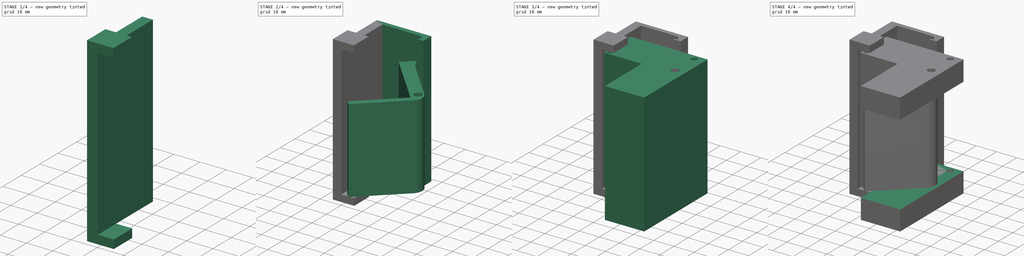
[diagram: build sequence overview — one tinted view per stage of 4, left to right]
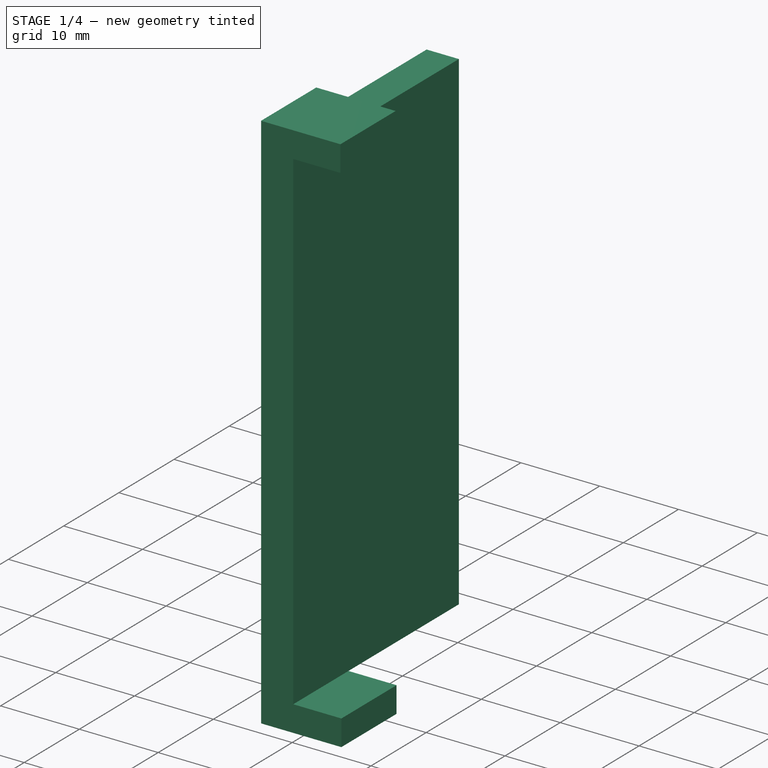
[diagram: stage 1 of 4 — iso view after this stage's code; geometry added in this stage tinted green]
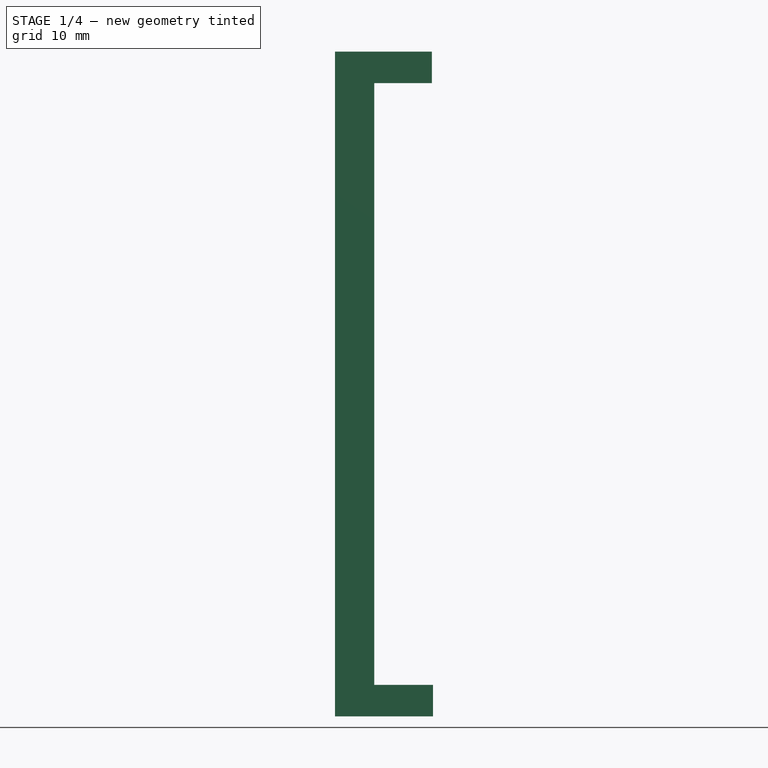
[diagram: stage 1 of 4 — front view after this stage's code; geometry added in this stage tinted green]
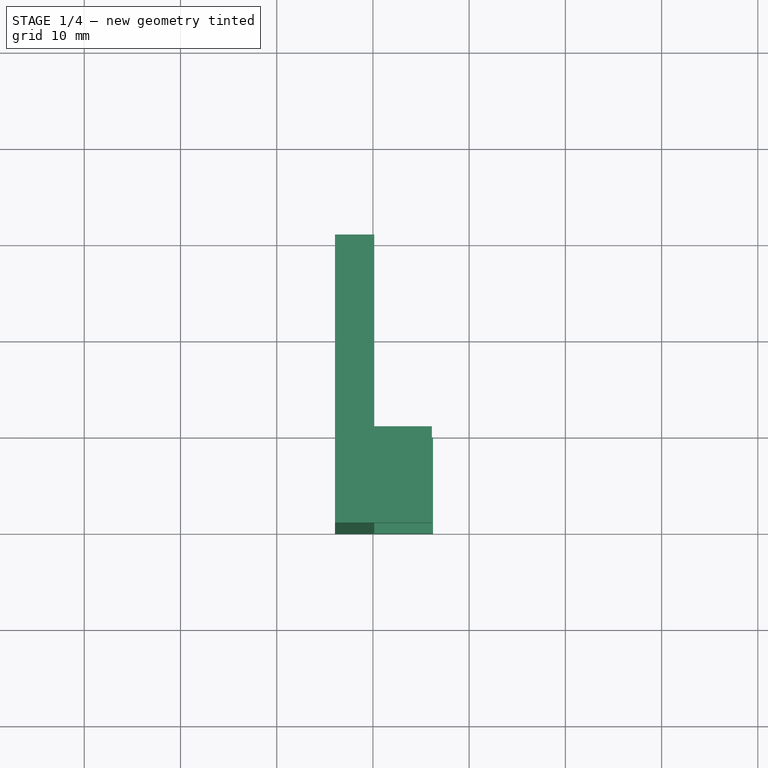
[diagram: stage 1 of 4 — top view after this stage's code; geometry added in this stage tinted green]
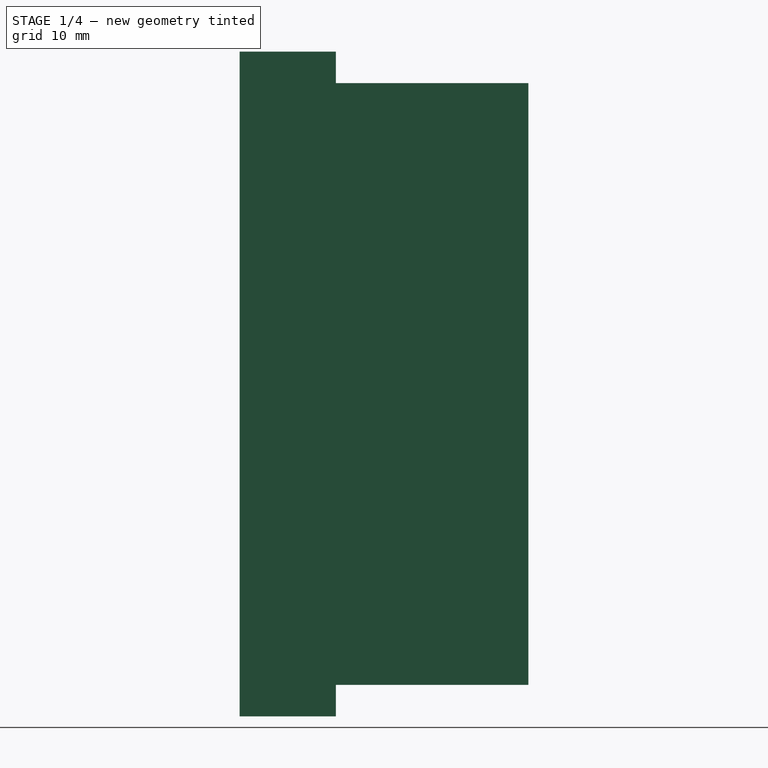
[diagram: stage 1 of 4 — right view after this stage's code; geometry added in this stage tinted green]
FCSTD DOCUMENT  (FreeCAD 1.0R39109 (Git))
Label: porte_banniere
License: All rights reserved
LicenseURL: https://en.wikipedia.org/wiki/All_rights_reserved
objects: Sketcher::SketchObject×6, PartDesign::Pad×4, PartDesign::Body×3, PartDesign::Fillet×3, PartDesign::Pocket×2, PartDesign::ShapeBinder×2, PartDesign::Chamfer×1
note: 47 computed .brp shape members not serialized (recipe doc carries the construction recipe); baked Part::Feature solids carry a one-line shape summary decoded from their .brp

FEATURE [PartDesign::Body] Body001  label="Corps001"
  AllowCompound = false
  Group = -> [CopyChamfer,Sketch002,Pad001,Fillet,Fillet001,Fillet002]
  Origin = -> Origin001
  Tip = -> Fillet002
FEATURE [PartDesign::ShapeBinder] CopyChamfer001
  TraceSupport = false
FEATURE [Sketcher::SketchObject] Sketch003
  ArcFitTolerance = 1e-06
  AttachmentSupport = -> [CopyChamfer001]
  FullyConstrained = false
  MakeInternals = false
  MapMode = 5
  Placement = pos=(0,0,0) rot=(1,0,0;1.5708rad)
  sketch-geometry (8):
    g0: LineSegment StartX=-19.8611 StartY=61.1366 StartZ=0 EndX=-13.8752 EndY=61.1366 EndZ=0
    g1: LineSegment StartX=-13.8752 StartY=61.1366 StartZ=0 EndX=-13.8752 EndY=64.4211 EndZ=0
    g2: LineSegment StartX=-13.8752 StartY=64.4211 StartZ=0 EndX=-23.9444 EndY=64.4211 EndZ=0
    g3: LineSegment StartX=-23.9444 StartY=64.4211 StartZ=0 EndX=-23.9444 EndY=-4.67728 EndZ=0
    g4: LineSegment StartX=-23.9444 StartY=-4.67728 StartZ=0 EndX=-13.757 EndY=-4.67728 EndZ=0
    g5: LineSegment StartX=-13.757 StartY=-4.67728 StartZ=0 EndX=-13.757 EndY=-1.39272 EndZ=0
    g6: LineSegment StartX=-13.757 StartY=-1.39272 StartZ=0 EndX=-19.8611 EndY=-1.39272 EndZ=0
    g7: LineSegment StartX=-19.8611 StartY=-1.39272 StartZ=0 EndX=-19.8611 EndY=61.1366 EndZ=0
  constraints (17):
    c: Horizontal(g0)
    c: Coincident(g0,g1)
    c: Coincident(g1,g2)
    c: Horizontal(g2)
    c: Coincident(g2,g3)
    c: Vertical(g3)
    c: Coincident(g3,g4)
    c: Horizontal(g4)
    c: Coincident(g4,g5)
    c: Vertical(g5)
    c: Coincident(g5,g6)
    c: Horizontal(g6)
    c: Coincident(g6,g7)
    c: Coincident(g7,g0)
    c: Vertical(g7)
    c: Vertical(g1)
    c: Equal(g5,g1)
FEATURE [PartDesign::Pad] Pad002
  Direction = (0,-1,2e-16)
  Length = 30
  Length2 = 10
  Profile = -> Sketch003
  ReferenceAxis = -> Sketch003 [N_Axis]
  Refine = true
  Reversed = true
  Suppressed = false
  Type = 0
FEATURE [Sketcher::SketchObject] Sketch004
  ArcFitTolerance = 1e-06
  AttachmentSupport = -> [Pad002]
  ExternalGeometry = -> [Pad002]
  FullyConstrained = true
  MakeInternals = false
  MapMode = 5
  Placement = pos=(0,30,-6.7e-15) rot=(0,0.707107,0.707107;3.14159rad)
  sketch-geometry (8):
    g0: LineSegment StartX=23.9444 StartY=64.4211 StartZ=0 EndX=13.8752 EndY=64.4211 EndZ=0
    g1: LineSegment StartX=13.8752 StartY=64.4211 StartZ=0 EndX=13.8752 EndY=61.1366 EndZ=0
    g2: LineSegment StartX=13.8752 StartY=61.1366 StartZ=0 EndX=23.9444 EndY=61.1366 EndZ=0
    g3: LineSegment StartX=23.9444 StartY=61.1366 StartZ=0 EndX=23.9444 EndY=64.4211 EndZ=0
    g4: LineSegment StartX=23.9444 StartY=-4.67728 StartZ=0 EndX=23.9444 EndY=-1.39272 EndZ=0
    g5: LineSegment StartX=23.9444 StartY=-1.39272 StartZ=0 EndX=13.757 EndY=-1.39272 EndZ=0
    g6: LineSegment StartX=13.757 StartY=-1.39272 StartZ=0 EndX=13.757 EndY=-4.67728 EndZ=0
    g7: LineSegment StartX=13.757 StartY=-4.67728 StartZ=0 EndX=23.9444 EndY=-4.67728 EndZ=0
  constraints (20):
    c: Coincident(g0,g1)
    c: Coincident(g1,g2)
    c: Coincident(g2,g3)
    c: Coincident(g3,g0)
    c: Horizontal(g0)
    c: Horizontal(g2)
    c: Vertical(g1)
    c: Vertical(g3)
    c: Coincident(g0,g-3)
    c: Coincident(g1,g-4)
    c: Coincident(g4,g5)
    c: Coincident(g5,g6)
    c: Coincident(g6,g7)
    c: Coincident(g7,g4)
    c: Vertical(g4)
    c: Vertical(g6)
    c: Horizontal(g5)
    c: Horizontal(g7)
    c: Coincident(g4,g-6)
    c: Coincident(g5,g-5)
FEATURE [PartDesign::Pocket] Pocket001
  BaseFeature = -> Pad002
  Direction = (0,-1,2e-16)
  Length = 20
  Length2 = 5
  Profile = -> Sketch004
  ReferenceAxis = -> Sketch004 [N_Axis]
  Refine = true
  Suppressed = false
  Type = 0
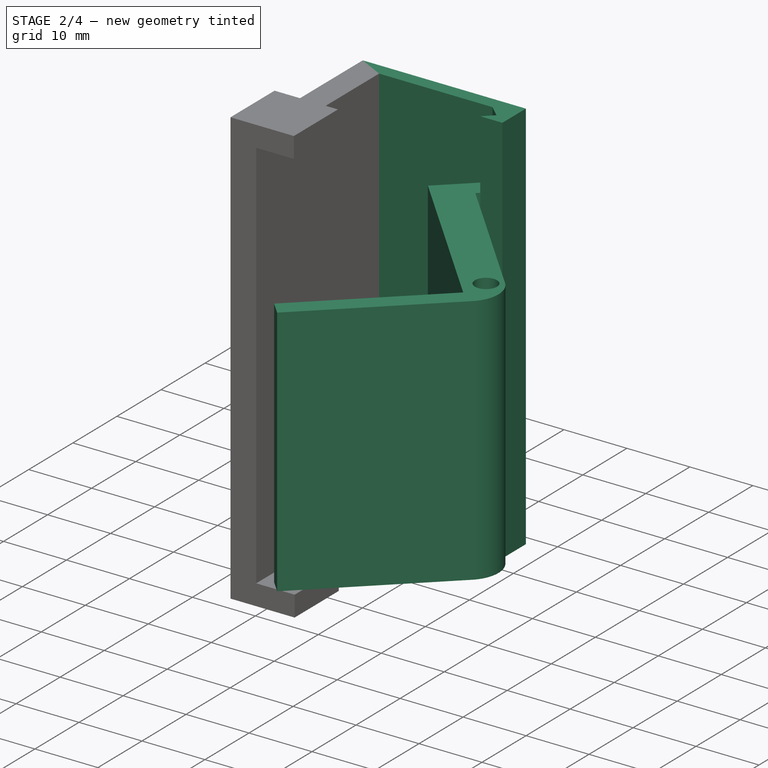
[diagram: stage 2 of 4 — iso view after this stage's code; geometry added in this stage tinted green]
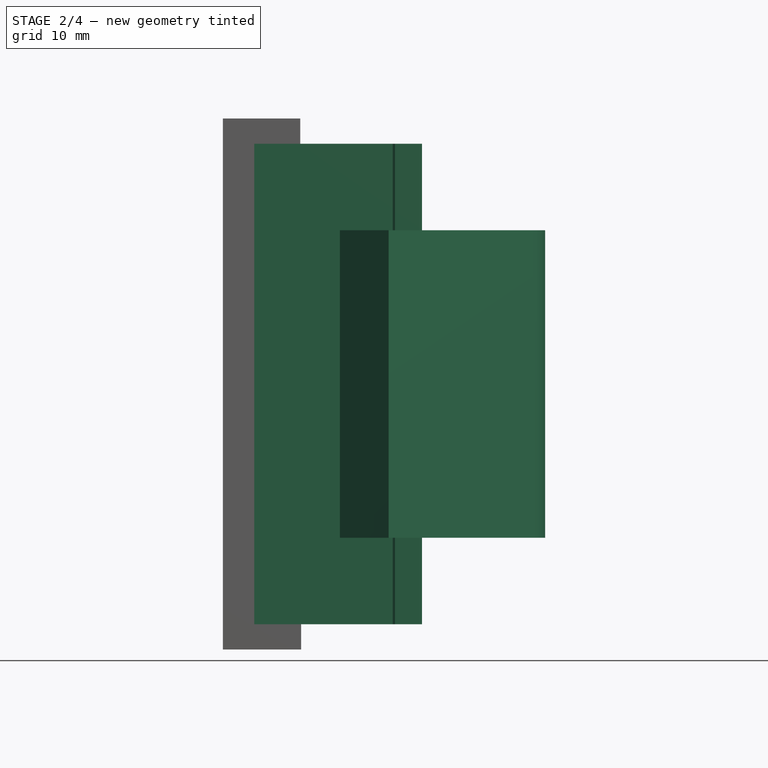
[diagram: stage 2 of 4 — front view after this stage's code; geometry added in this stage tinted green]
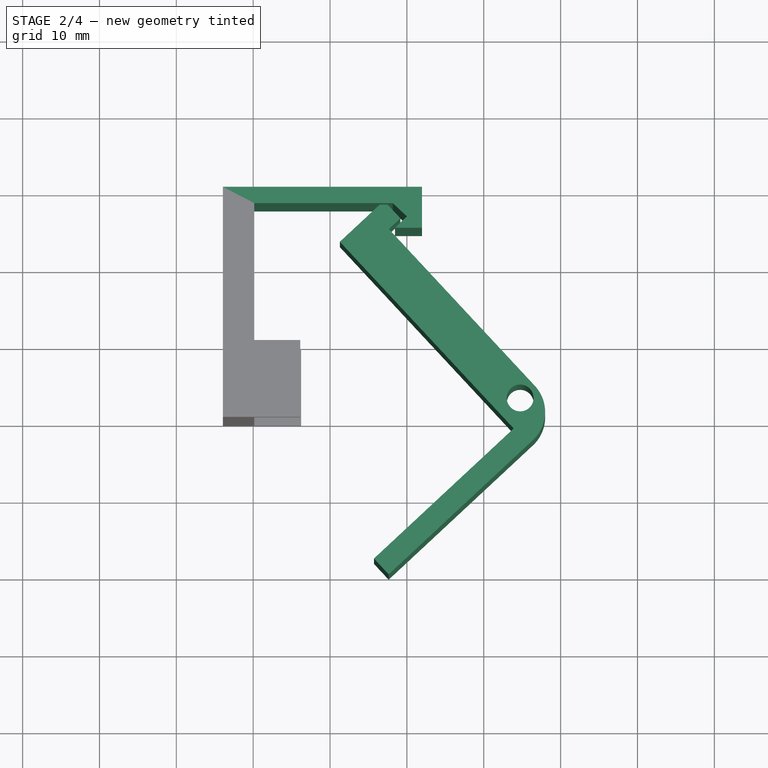
[diagram: stage 2 of 4 — top view after this stage's code; geometry added in this stage tinted green]
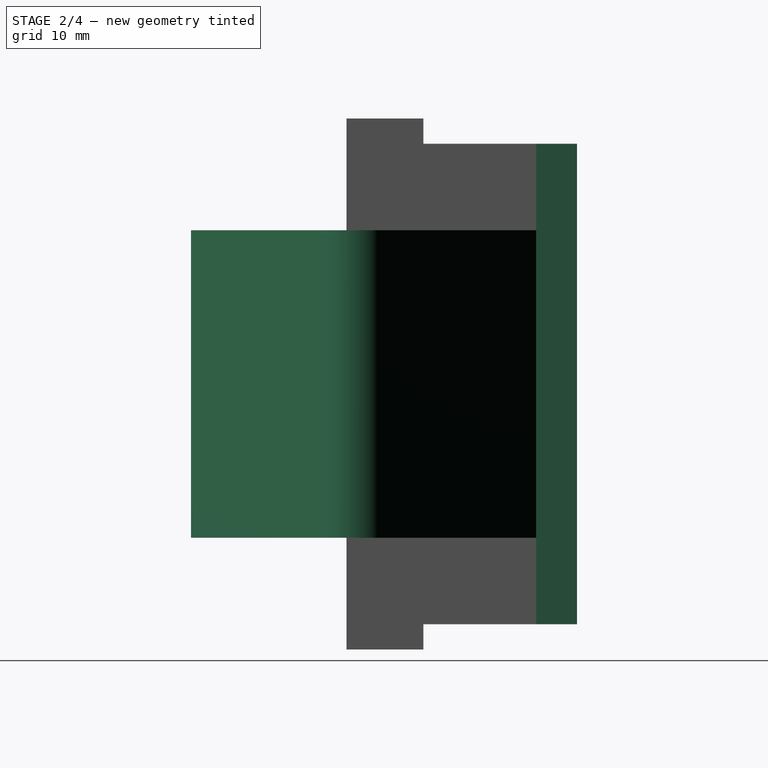
[diagram: stage 2 of 4 — right view after this stage's code; geometry added in this stage tinted green]
FEATURE [PartDesign::Body] Body  label="Corps"
  AllowCompound = false
  Group = -> [Sketch,Pad,Sketch001,Pocket,Chamfer]
  Origin = -> Origin
  Tip = -> Chamfer
FEATURE [PartDesign::ShapeBinder] CopyChamfer
  TraceSupport = false
FEATURE [Sketcher::SketchObject] Sketch002
  ArcFitTolerance = 1e-06
  AttachmentSupport = -> [CopyChamfer]
  ExternalGeometry = -> [CopyChamfer]
  FullyConstrained = false
  MakeInternals = false
  MapMode = 5
  Placement = pos=(0,2.2e-15,9.87227) rot=(0,0,1;0rad)
  sketch-geometry (9):
    g0: Circle CenterX=14.7392 CenterY=2.71744 CenterZ=0 NormalX=0 NormalY=0 NormalZ=1 AngleXU=0 Radius=1.74484
    g1: LineSegment StartX=-8.72495 StartY=23.0442 StartZ=0 EndX=13.8935 EndY=-1.25071 EndZ=0
    g2: LineSegment StartX=13.8935 StartY=-1.25071 StartZ=0 EndX=-4.28785 EndY=-18.1774 EndZ=0
    g3: LineSegment StartX=-4.28785 StartY=-18.1774 StartZ=0 EndX=-2.37102 EndY=-20.2363 EndZ=0
    g4: LineSegment StartX=-2.37102 StartY=-20.2363 StartZ=0 EndX=20.0518 EndY=0.639229 EndZ=0
    g5: LineSegment StartX=20.0518 StartY=0.639229 StartZ=0 EndX=-2.34585 EndY=24.6971 EndZ=0
    g6: LineSegment StartX=-2.34585 StartY=24.6971 StartZ=0 EndX=-0.843826 EndY=26.0954 EndZ=0
    g7: LineSegment StartX=-0.843826 StartY=26.0954 StartZ=0 EndX=-2.98138 EndY=28.3914 EndZ=0
    g8: LineSegment StartX=-2.98138 StartY=28.3914 StartZ=0 EndX=-8.72495 EndY=23.0442 EndZ=0
  constraints (17):
    c: Coincident(g1,g2)
    c: Coincident(g2,g3)
    c: Coincident(g3,g4)
    c: Coincident(g4,g5)
    c: Coincident(g5,g6)
    c: Coincident(g6,g7)
    c: Coincident(g7,g8)
    c: Coincident(g8,g1)
    c: Coincident(g0,g-3)
    c: Equal(g-3,g0)
    c: Parallel(g1,g5)
    c: Parallel(g2,g4)
    c: Parallel(g6,g8)
    c: Perpendicular(g8,g1)
    c: Perpendicular(g7,g6)
    c: Perpendicular(g1,g2)
    c: Perpendicular(g4,g3)
FEATURE [PartDesign::Pad] Pad001
  Direction = (0,0,1)
  Length = 40
  Length2 = 10
  Profile = -> Sketch002
  ReferenceAxis = -> Sketch002 [N_Axis]
  Refine = true
  Suppressed = false
  Type = 0
FEATURE [PartDesign::Fillet] Fillet
  Base = -> Pad001 [Edge11]
  BaseFeature = -> Pad001
  Radius = 5
  Refine = true
  SupportTransform = false
  Suppressed = false
  UseAllEdges = false
FEATURE [Sketcher::SketchObject] Sketch005
  ArcFitTolerance = 1e-06
  AttachmentSupport = -> [Pocket001]
  ExternalGeometry = -> [Pocket001]
  FullyConstrained = false
  MakeInternals = false
  MapMode = 5
  Placement = pos=(0,1.36e-14,61.1366) rot=(0,0,1;0rad)
  sketch-geometry (7):
    g0: LineSegment StartX=-19.8611 StartY=30 StartZ=0 EndX=1.96655 EndY=30 EndZ=0
    g1: LineSegment StartX=1.96655 StartY=30 StartZ=0 EndX=1.96655 EndY=24.6673 EndZ=0
    g2: LineSegment StartX=1.96655 StartY=24.6673 StartZ=0 EndX=-1.54632 EndY=24.6673 EndZ=0
    g3: LineSegment StartX=-1.54632 StartY=24.6673 StartZ=0 EndX=0 EndY=26.1454 EndZ=0
    g4: LineSegment StartX=0 StartY=26.1454 StartZ=0 EndX=-1.84046 EndY=27.8758 EndZ=0
    g5: LineSegment StartX=-1.84046 StartY=27.8758 StartZ=0 EndX=-19.8611 EndY=27.8758 EndZ=0
    g6: LineSegment StartX=-19.8611 StartY=27.8758 StartZ=0 EndX=-19.8611 EndY=30 EndZ=0
  constraints (14):
    c: Coincident(g-3,g0)
    c: Horizontal(g0)
    c: Coincident(g0,g1)
    c: Vertical(g1)
    c: Coincident(g1,g2)
    c: Horizontal(g2)
    c: Coincident(g2,g3)
    c: PointOnObject(g3,g-2)
    c: Coincident(g3,g4)
    c: Coincident(g4,g5)
    c: Horizontal(g5)
    c: Coincident(g5,g6)
    c: Coincident(g6,g0)
    c: Vertical(g6)
FEATURE [PartDesign::Pad] Pad003
  BaseFeature = -> Pocket001
  Direction = (0,0,1)
  Length = 10
  Length2 = 10
  Profile = -> Sketch005
  ReferenceAxis = -> Sketch005 [N_Axis]
  Refine = true
  Reversed = true
  Suppressed = false
  Type = 3
  UpToFace = -> Pocket001 [Face12]
FEATURE [PartDesign::Body] Body002  label="Corps002"
  AllowCompound = false
  Group = -> [CopyChamfer001,Sketch003,Pad002,Sketch004,Pocket001,Sketch005,Pad003]
  Origin = -> Origin002
  Tip = -> Pad003
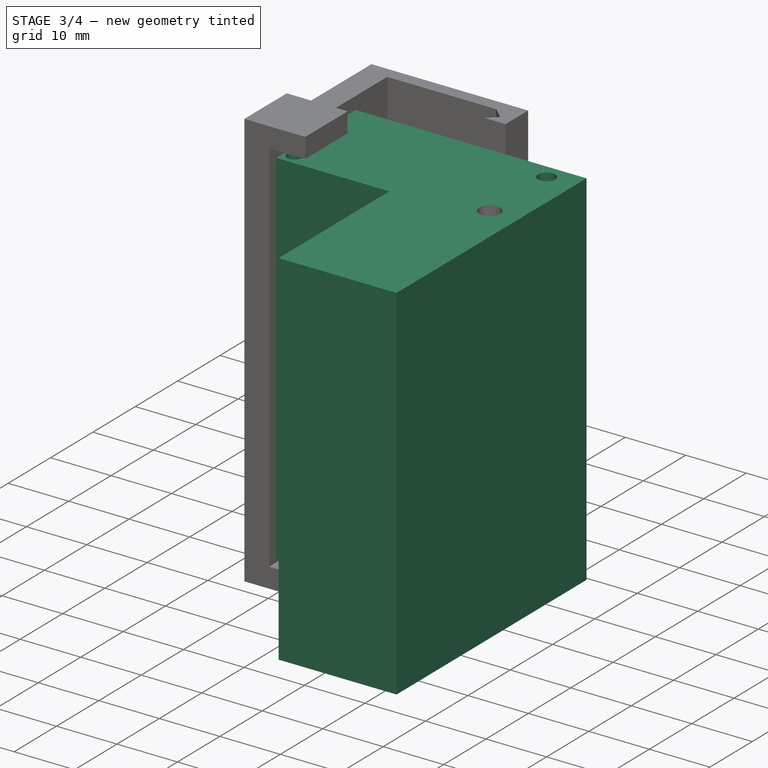
[diagram: stage 3 of 4 — iso view after this stage's code; geometry added in this stage tinted green]
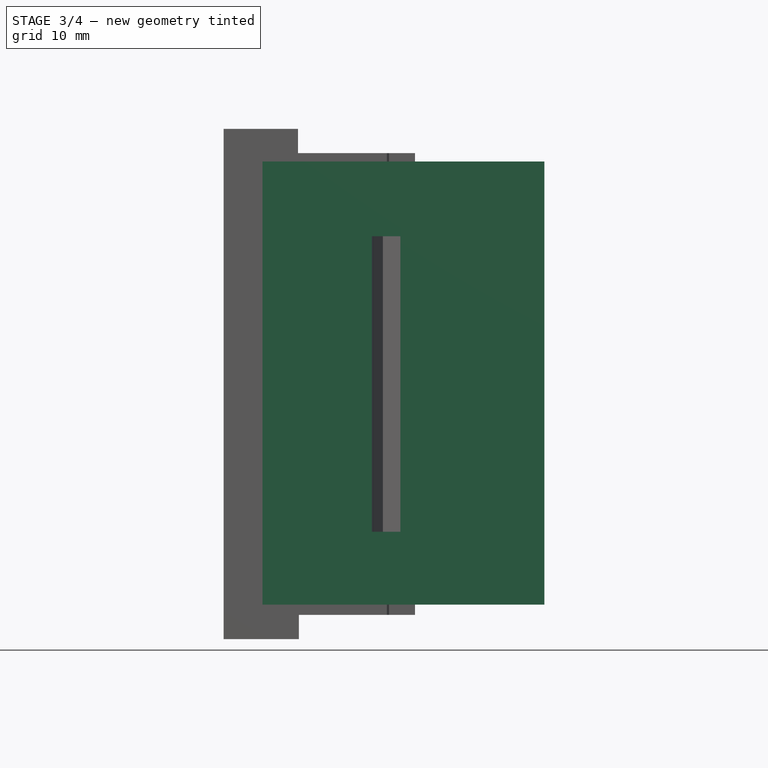
[diagram: stage 3 of 4 — front view after this stage's code; geometry added in this stage tinted green]
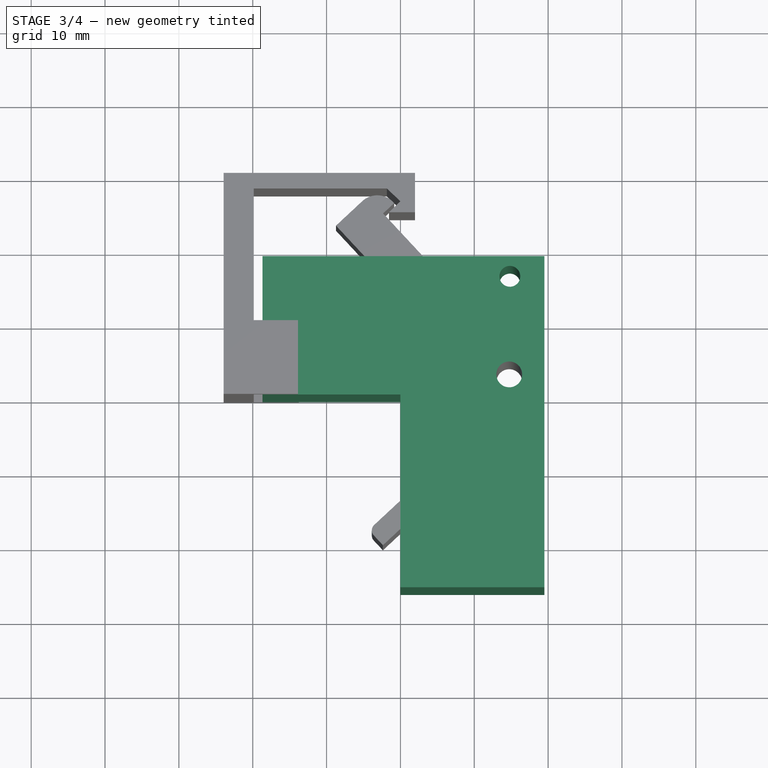
[diagram: stage 3 of 4 — top view after this stage's code; geometry added in this stage tinted green]
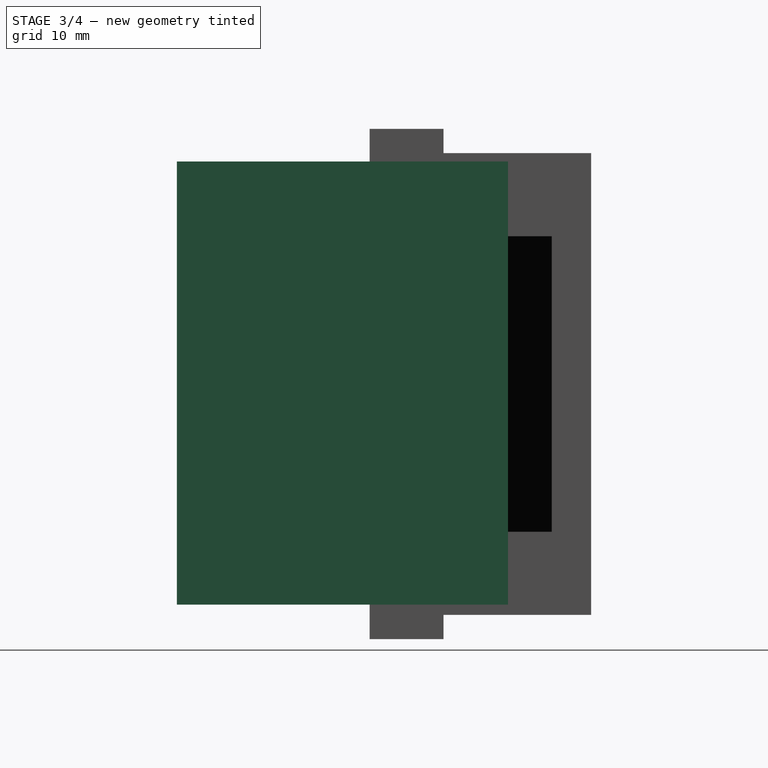
[diagram: stage 3 of 4 — right view after this stage's code; geometry added in this stage tinted green]
FEATURE [Sketcher::SketchObject] Sketch
  ArcFitTolerance = 1e-06
  AttachmentSupport = -> [XY_Plane]
  FullyConstrained = false
  MakeInternals = false
  MapMode = 5
  sketch-geometry (9):
    g0: LineSegment StartX=0 StartY=0 StartZ=0 EndX=-18.6768 EndY=0 EndZ=0
    g1: LineSegment StartX=-18.6768 StartY=0 StartZ=0 EndX=-18.6768 EndY=18.7354 EndZ=0
    g2: LineSegment StartX=-18.6768 StartY=18.7354 StartZ=0 EndX=19.4965 EndY=18.7354 EndZ=0
    g3: LineSegment StartX=19.4965 StartY=18.7354 StartZ=0 EndX=19.4965 EndY=-26.1124 EndZ=0
    g4: LineSegment StartX=19.4965 StartY=-26.1124 StartZ=0 EndX=0 EndY=-26.1124 EndZ=0
    g5: LineSegment StartX=0 StartY=-26.1124 StartZ=0 EndX=0 EndY=0 EndZ=0
    g6: Circle CenterX=14.7392 CenterY=2.71745 CenterZ=0 NormalX=0 NormalY=0 NormalZ=1 AngleXU=0 Radius=1.74484
    g7: Circle CenterX=14.8194 CenterY=16.0019 CenterZ=0 NormalX=0 NormalY=0 NormalZ=1 AngleXU=0 Radius=1.40845
    g8: Circle CenterX=-17.0197 CenterY=1.89762 CenterZ=0 NormalX=0 NormalY=0 NormalZ=1 AngleXU=0 Radius=1.1737
  constraints (13):
    c: Coincident(g-1,g0)
    c: PointOnObject(g0,g-1)
    c: Coincident(g0,g1)
    c: Vertical(g1)
    c: Coincident(g1,g2)
    c: Horizontal(g2)
    c: Coincident(g2,g3)
    c: Vertical(g3)
    c: Coincident(g3,g4)
    c: PointOnObject(g4,g-2)
    c: Horizontal(g4)
    c: Coincident(g4,g5)
    c: Coincident(g5,g0)
FEATURE [PartDesign::Pad] Pad
  Direction = (0,0,1)
  Length = 60
  Length2 = 10
  Profile = -> Sketch
  ReferenceAxis = -> Sketch [N_Axis]
  Refine = true
  Suppressed = false
  Type = 0
FEATURE [PartDesign::Fillet] Fillet001
  Base = -> Fillet [Edge16]
  BaseFeature = -> Fillet
  Radius = 1
  Refine = true
  SupportTransform = false
  Suppressed = false
  UseAllEdges = false
FEATURE [PartDesign::Fillet] Fillet002
  Base = -> Fillet001 [Edge27]
  BaseFeature = -> Fillet001
  Radius = 3
  Refine = true
  SupportTransform = false
  Suppressed = false
  UseAllEdges = false
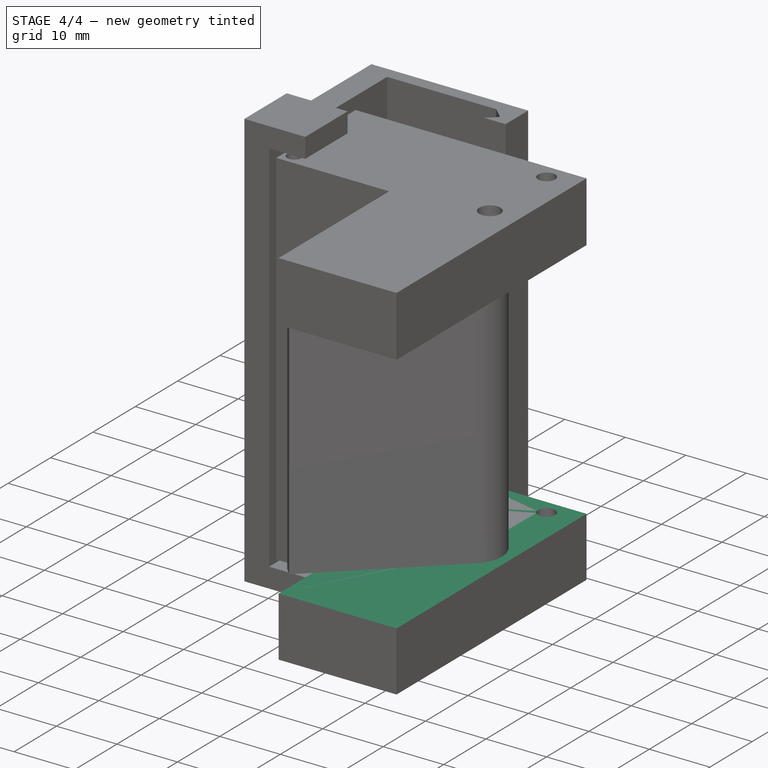
[diagram: stage 4 of 4 — iso view after this stage's code; geometry added in this stage tinted green]
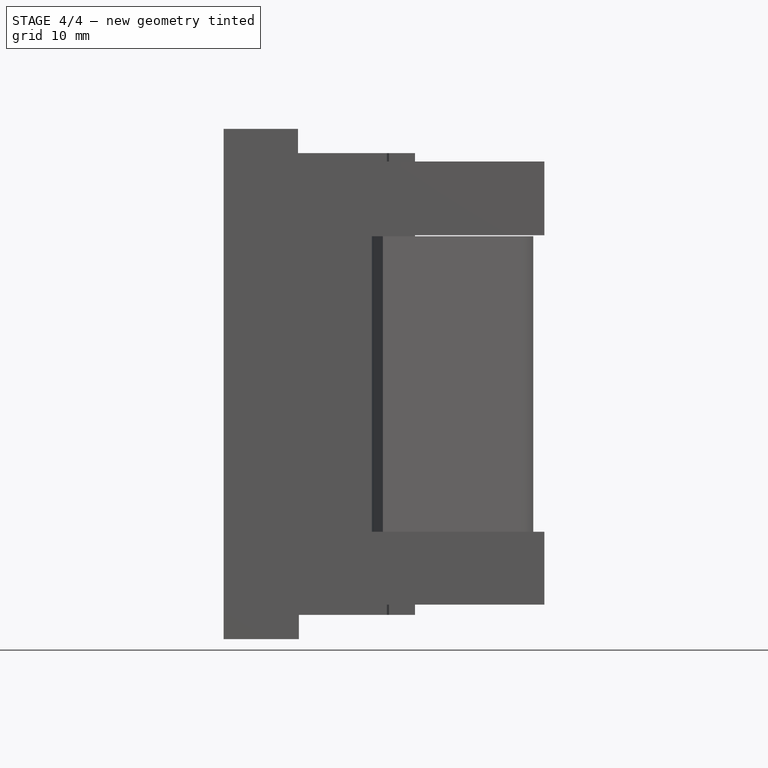
[diagram: stage 4 of 4 — front view after this stage's code; geometry added in this stage tinted green]
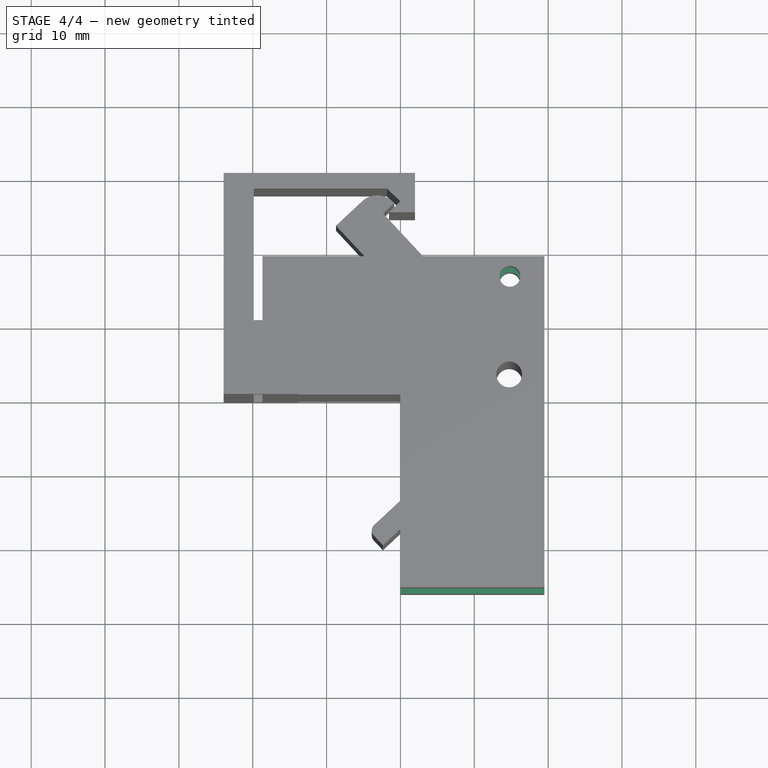
[diagram: stage 4 of 4 — top view after this stage's code; geometry added in this stage tinted green]
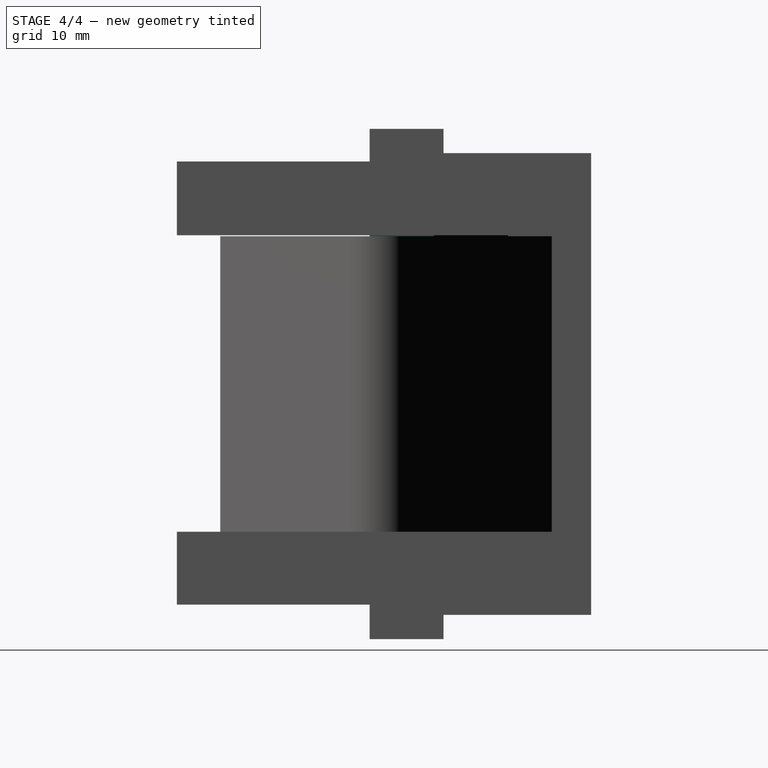
[diagram: stage 4 of 4 — right view after this stage's code; geometry added in this stage tinted green]
FEATURE [Sketcher::SketchObject] Sketch001
  ArcFitTolerance = 1e-06
  AttachmentSupport = -> [Pad]
  ExternalGeometry = -> [Pad]
  FullyConstrained = false
  MakeInternals = false
  MapMode = 5
  Placement = pos=(0,18.7354,0) rot=(0,0.707107,0.707107;3.14159rad)
  sketch-geometry (4):
    g0: LineSegment StartX=-19.4965 StartY=50.0131 StartZ=0 EndX=-19.4965 EndY=9.87227 EndZ=0
    g1: LineSegment StartX=-19.4965 StartY=9.87227 StartZ=0 EndX=0 EndY=9.87227 EndZ=0
    g2: LineSegment StartX=0 StartY=9.87227 StartZ=0 EndX=0 EndY=50.0131 EndZ=0
    g3: LineSegment StartX=0 StartY=50.0131 StartZ=0 EndX=-19.4965 EndY=50.0131 EndZ=0
  constraints (10):
    c: Coincident(g0,g1)
    c: Coincident(g1,g2)
    c: Coincident(g2,g3)
    c: Coincident(g3,g0)
    c: Vertical(g0)
    c: Vertical(g2)
    c: Horizontal(g1)
    c: Horizontal(g3)
    c: PointOnObject(g0,g-3)
    c: PointOnObject(g1,g-2)
FEATURE [PartDesign::Pocket] Pocket
  BaseFeature = -> Pad
  Direction = (0,-1,2e-16)
  Length = 5
  Length2 = 5
  Profile = -> Sketch001
  ReferenceAxis = -> Sketch001 [N_Axis]
  Refine = true
  Suppressed = false
  Type = 1
FEATURE [PartDesign::Chamfer] Chamfer
  Angle = 45
  Base = -> Pocket [Edge10]
  BaseFeature = -> Pocket
  ChamferType = 0
  FlipDirection = false
  Refine = true
  Size = 10
  Size2 = 1
  SupportTransform = false
  Suppressed = false
  UseAllEdges = false
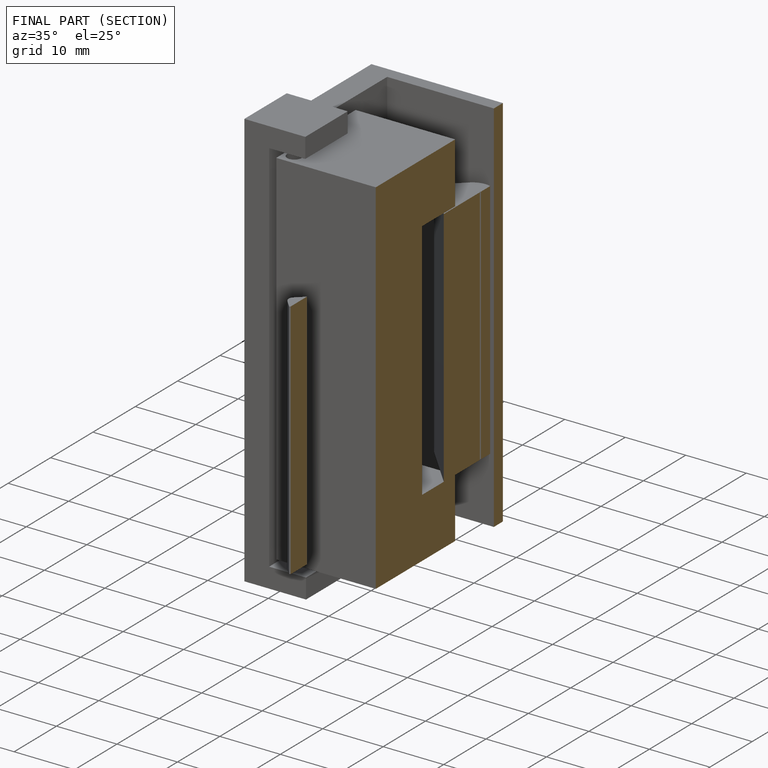
[diagram: finished part — half-section view (interior)]
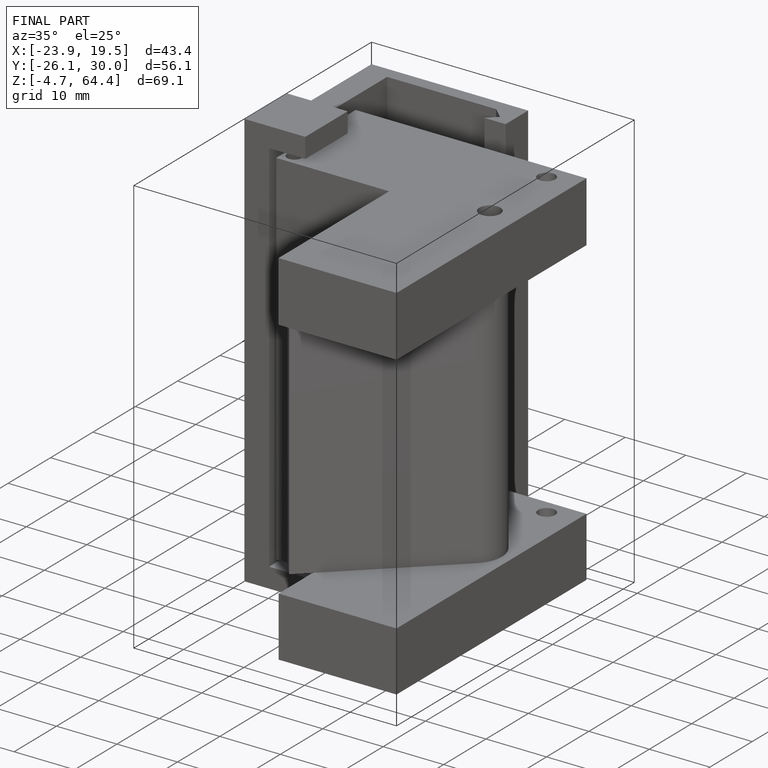
[diagram: finished part — iso view with bounding-box wireframe]
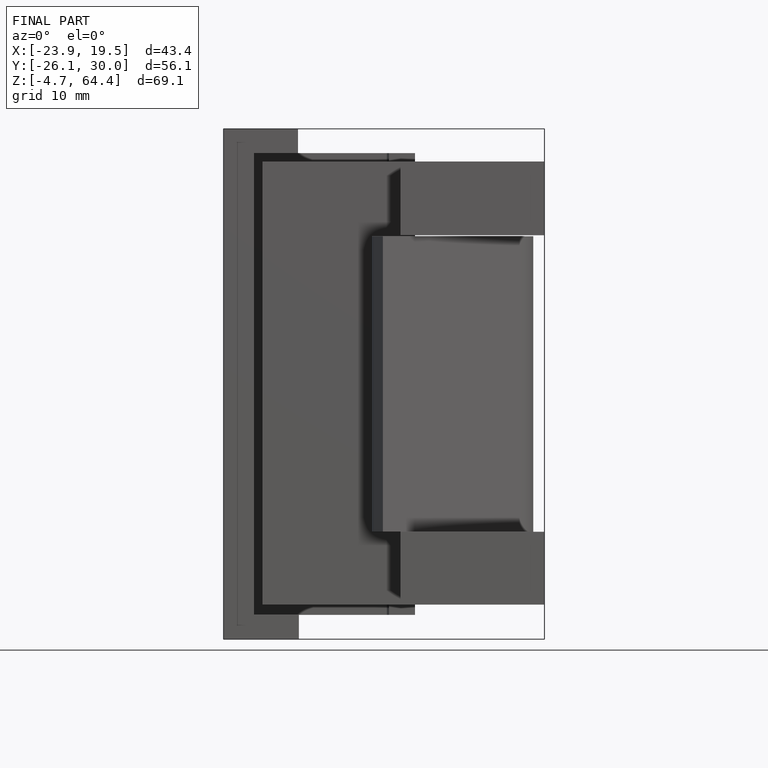
[diagram: finished part — front view with bounding-box wireframe]
